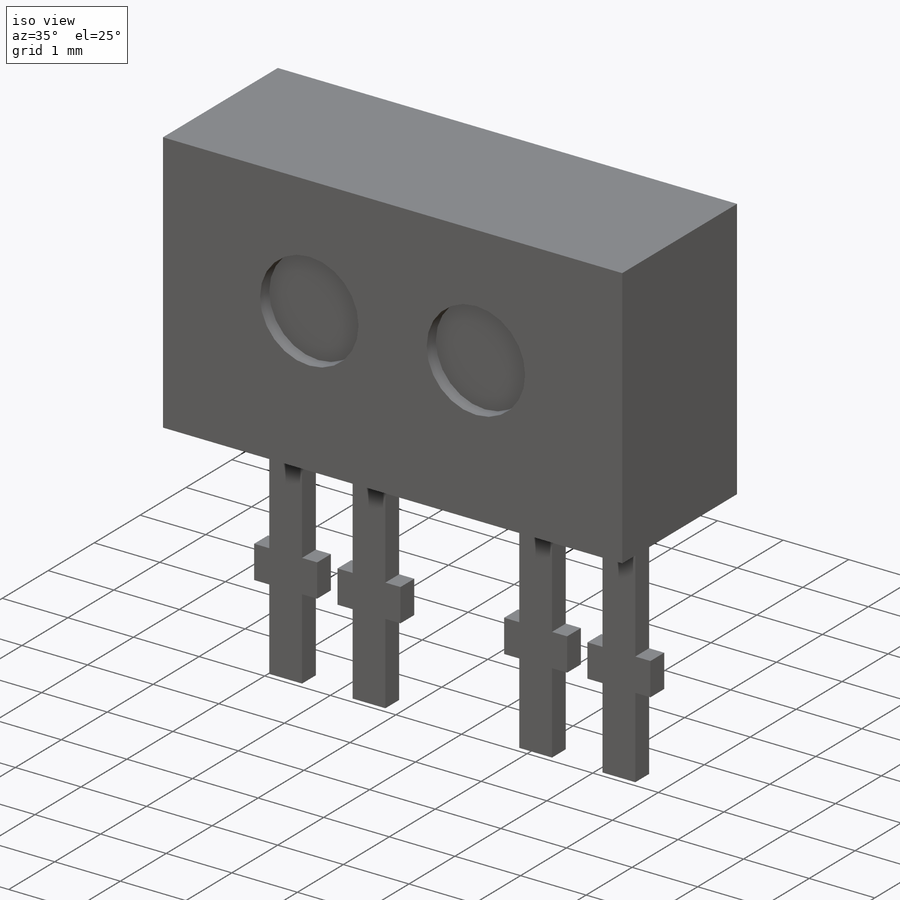
[diagram: iso view]
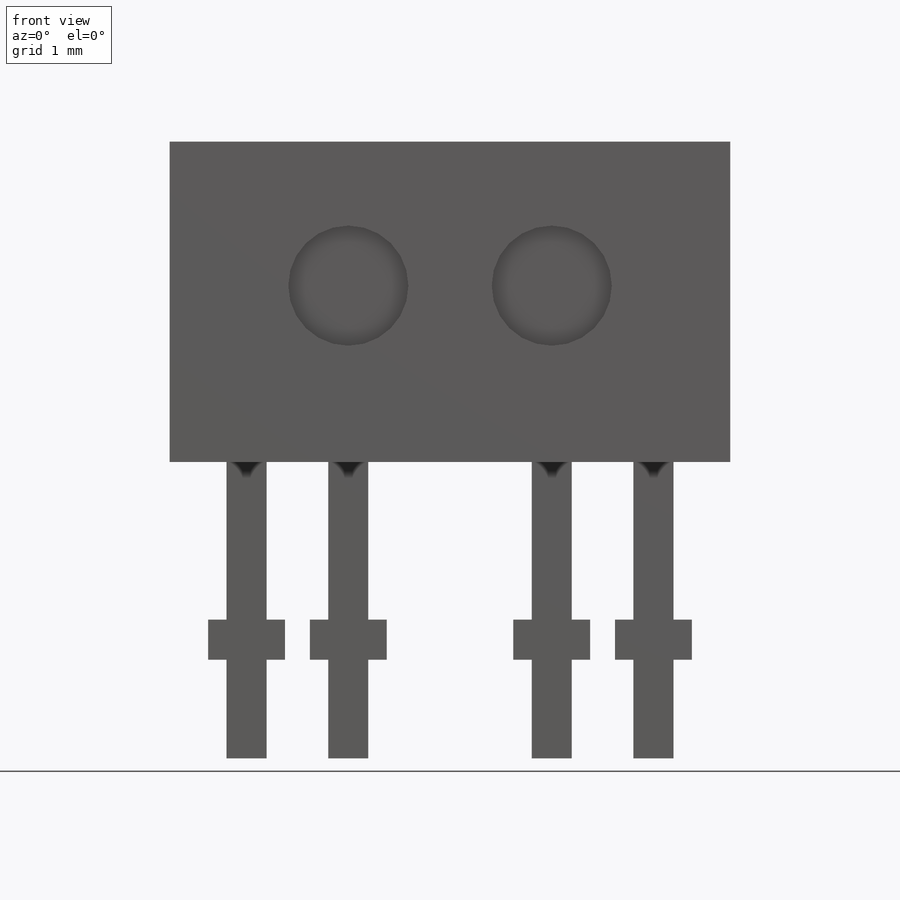
[diagram: front view]
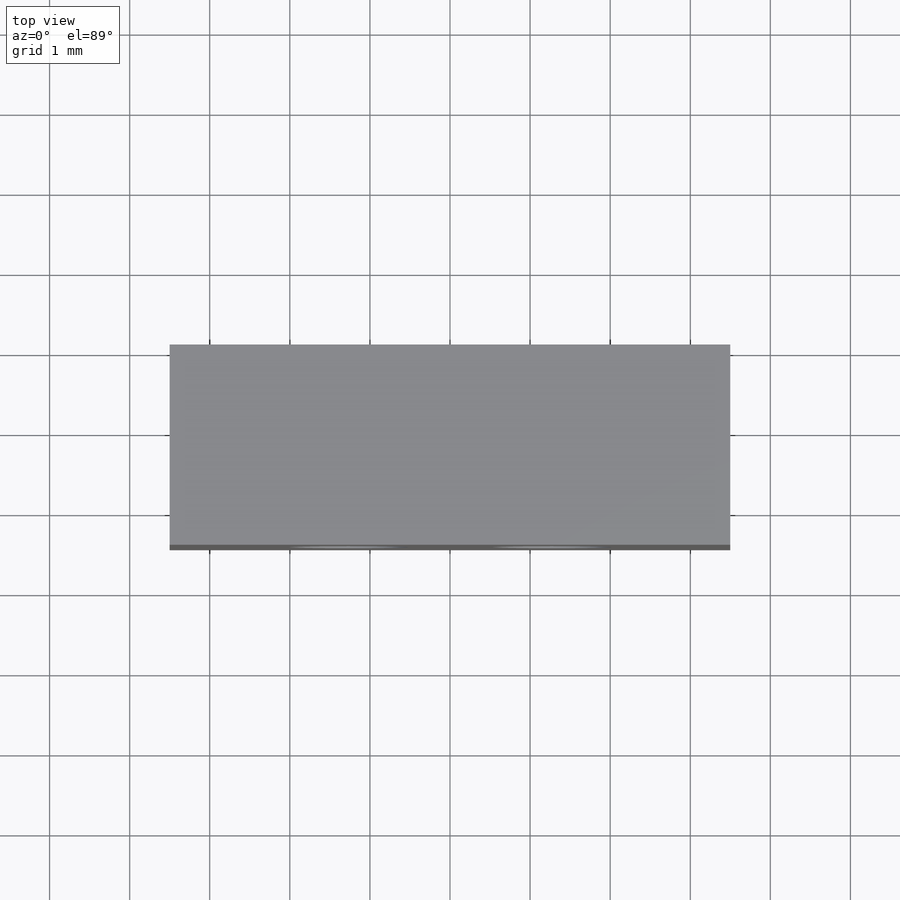
[diagram: top view]
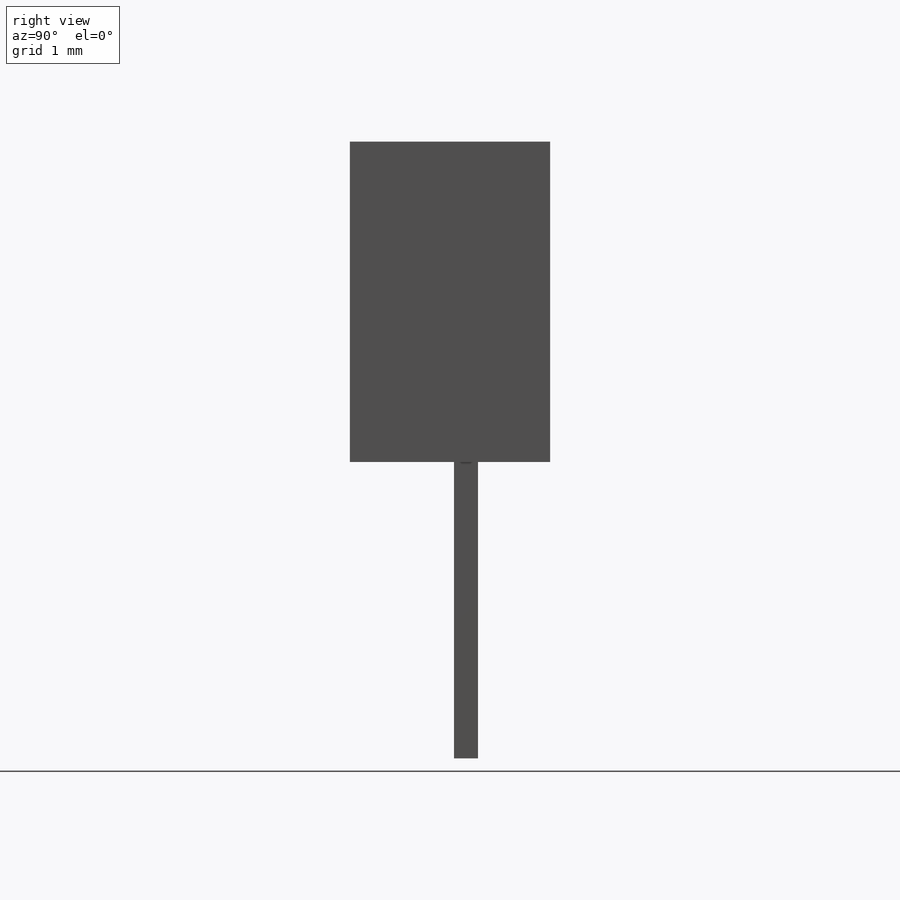
[diagram: right view]
SOLIDWORKS PART (.sldprt)
format: sldprt  version: not decoded by parser v0  size: 224,768 bytes
history: native  units: mm
features: sketch x4, extrude x2, cut_extrude x2, material x1 (+13 scaffold rows collapsed)
feature tree (22):
  scaffold x13  (default folders/planes/origin — collapsed)
  material  "Material <not specified>"
  sketch  "Sketch1"  dims[D2=1.0mm D1=2.54mm D3=7.0mm D4=4.0mm]
  extrude  "Boss-Extrude1"  Depth=2.5mm
  sketch  "Sketch2"  dims[D2=1.5mm D1=2.54mm D3=1.8mm]
  cut_extrude  "Cut-Extrude1"  Depth=0.2mm
  sketch  "Sketch3"  dims[c1.D1=6.8mm c1.D2=0.3mm c2.D1=0.3mm c2.D2=6.8mm c2.D3=1.3mm c2.D4=5.2mm c3.D1=0.3mm c3.D2=7.7mm]
  extrude  "Boss-Extrude2"  [1 undecoded]
  sketch  "Sketch4"  dims[c1.D1=0.5mm c1.D2=0.5mm c1.D3=0.5mm c2.D2=2.54mm c2.D3=1.27mm c2.D4=1.6mm c2.D5=0.5mm]
  cut_extrude  "Cut-Extrude2"  [1 undecoded]
decode coverage: 6 of 8 modeling features carry decoded parameters
note: 2 parameter values undecoded
note: suppression state not decoded; provenance and decode notes live in map.json
